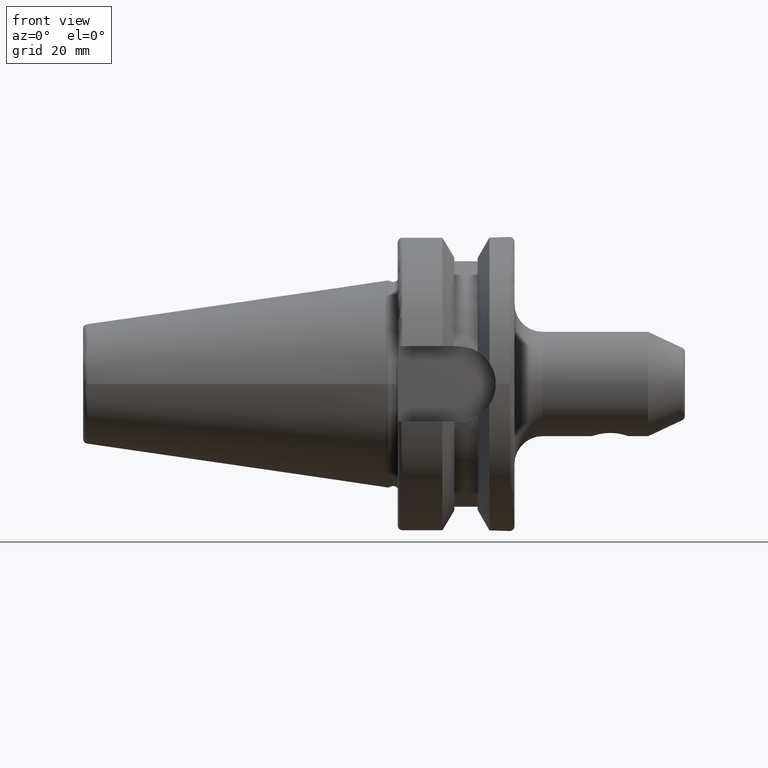
[diagram: clean part render]
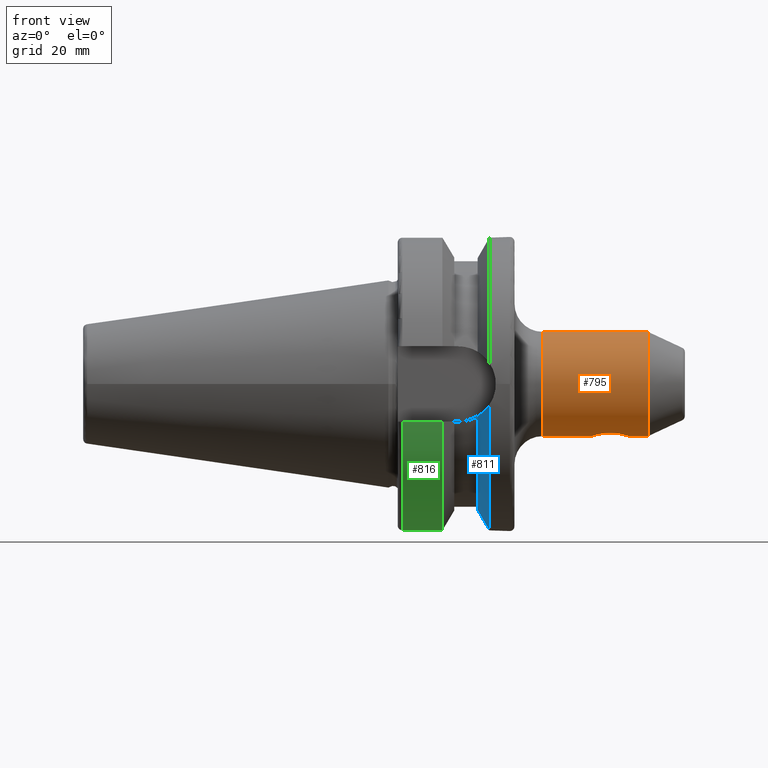
[diagram: same view with three faces highlighted in distinct colors, each labeled with its STEP entity id]
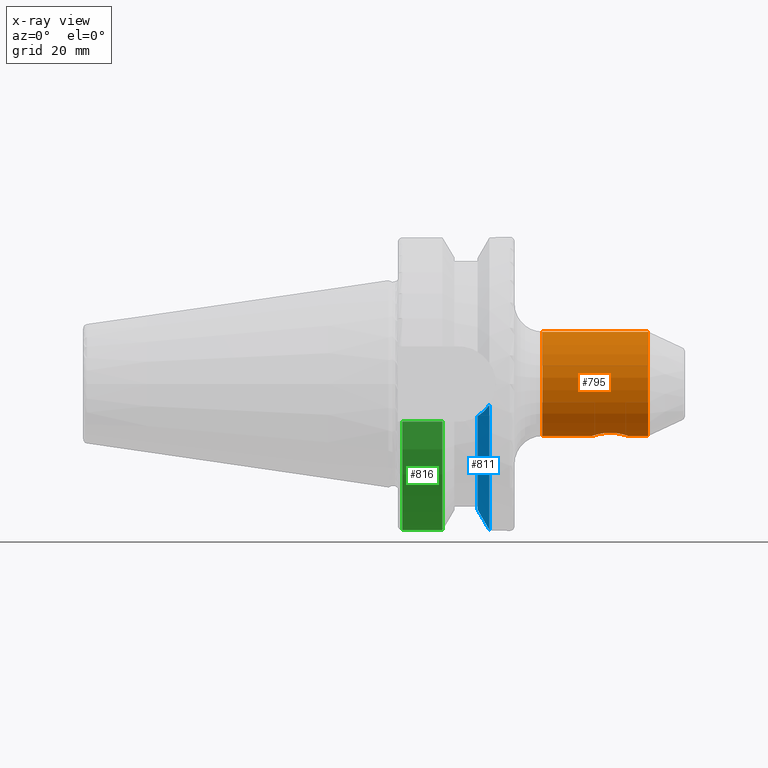
[diagram: x-ray of the same camera — body ghosted, the three highlighted faces saturated]
A machine part, front view with three faces highlighted in distinct colors.
The next image is the same camera in x-ray (body ghosted, the three faces saturated) — at least one of them is partly hidden behind the body in this view.
Their STEP definitions:

[orange] entity #795 — the highlighted cylindrical surface (bore or boss wall) has radius 11.176 mm, axis along (1, 0, 0).
#52=FACE_BOUND('',#180,.T.);
#59=CIRCLE('',#867,11.176);
#60=CIRCLE('',#868,11.176);
#61=CIRCLE('',#869,11.176);
#114=CYLINDRICAL_SURFACE('',#866,11.176);
#130=FACE_OUTER_BOUND('',#179,.T.);
#179=EDGE_LOOP('',(#555,#556,#557,#558,#559));
#180=EDGE_LOOP('',(#560));
#234=B_SPLINE_CURVE_WITH_KNOTS('',3,(#1338,#1339,#1340,#1341,#1342,#1343,
#1344,#1345,#1346,#1347,#1348,#1349,#1350,#1351,#1352,#1353,#1354,#1355,
#1356,#1357,#1358,#1359,#1360),.UNSPECIFIED.,.T.,.F.,(4,1,1,1,1,1,1,1,1,
1,1,1,1,1,1,1,1,1,1,1,4),(-3.60109538638099,-3.45411190122258,-3.30712841606418,
-3.28875548041937,-3.23363667348497,-3.16014493090577,-3.01316144574736,
-2.93966970316816,-2.86617796058895,-2.71919447543054,-2.62120548532494,
-2.52321649521933,-2.42522750511373,-2.32723851500812,-2.22924952490252,
-2.13126053479691,-1.9842770496385,-1.9107853070593,-1.8372935644801,-1.69031007932169,
-1.54332659416328),.UNSPECIFIED.);
#254=LINE('',#1413,#300);
#300=VECTOR('',#977,11.176);
#344=VERTEX_POINT('',#1312);
#348=VERTEX_POINT('',#1410);
#349=VERTEX_POINT('',#1412);
#350=VERTEX_POINT('',#1414);
#425=EDGE_CURVE('',#344,#344,#234,.T.);
#429=EDGE_CURVE('',#348,#348,#59,.T.);
#430=EDGE_CURVE('',#348,#349,#254,.T.);
#431=EDGE_CURVE('',#350,#349,#60,.T.);
#432=EDGE_CURVE('',#349,#350,#61,.T.);
#555=ORIENTED_EDGE('',*,*,#429,.F.);
#556=ORIENTED_EDGE('',*,*,#430,.T.);
#557=ORIENTED_EDGE('',*,*,#431,.F.);
#558=ORIENTED_EDGE('',*,*,#432,.F.);
#559=ORIENTED_EDGE('',*,*,#430,.F.);
#560=ORIENTED_EDGE('',*,*,#425,.F.);
#795=ADVANCED_FACE('',(#130,#52),#114,.T.);
#866=AXIS2_PLACEMENT_3D('',#1409,#973,#974);
#867=AXIS2_PLACEMENT_3D('',#1411,#975,#976);
#868=AXIS2_PLACEMENT_3D('',#1415,#978,#979);
#869=AXIS2_PLACEMENT_3D('',#1416,#980,#981);
#973=DIRECTION('center_axis',(1.,0.,0.));
#974=DIRECTION('ref_axis',(0.,0.,-1.));
#975=DIRECTION('center_axis',(1.,0.,0.));
#976=DIRECTION('ref_axis',(0.,0.,-1.));
#977=DIRECTION('',(-1.,0.,0.));
#978=DIRECTION('center_axis',(-1.,0.,0.));
#979=DIRECTION('ref_axis',(0.,-1.22464679914735E-16,1.));
#980=DIRECTION('center_axis',(-1.,0.,0.));
#981=DIRECTION('ref_axis',(0.,-1.22464679914735E-16,1.));
#1312=CARTESIAN_POINT('',(43.6091,2.77555756156289E-16,-11.176));
#1338=CARTESIAN_POINT('Ctrl Pts',(43.6091,2.77555756156289E-16,-11.176));
#1339=CARTESIAN_POINT('Ctrl Pts',(43.6091,0.562189037721418,-11.176));
#1340=CARTESIAN_POINT('Ctrl Pts',(43.8871855723304,1.77508042806121,-11.0753825305076));
#1341=CARTESIAN_POINT('Ctrl Pts',(44.6629362533301,2.72109062946936,-10.845867230977));
#1342=CARTESIAN_POINT('Ctrl Pts',(45.3460655227406,3.23324356468941,-10.699098830715));
#1343=CARTESIAN_POINT('Ctrl Pts',(45.8527279526033,3.53445460450522,-10.6044259262547));
#1344=CARTESIAN_POINT('Ctrl Pts',(46.9213401680526,3.89707731607406,-10.475621610086));
#1345=CARTESIAN_POINT('Ctrl Pts',(48.0793490754065,3.89790552168406,-10.4751370251406));
#1346=CARTESIAN_POINT('Ctrl Pts',(49.2266141873165,3.50609877583531,-10.6148767617679));
#1347=CARTESIAN_POINT('Ctrl Pts',(50.2034786055347,2.88461638119912,-10.8065387265879));
#1348=CARTESIAN_POINT('Ctrl Pts',(50.9882034004463,1.92898845031948,-11.0381136828858));
#1349=CARTESIAN_POINT('Ctrl Pts',(51.4076570476437,0.565252381470255,-11.1816676229239));
#1350=CARTESIAN_POINT('Ctrl Pts',(51.4031935706653,-0.564490802277567,-11.1806587792105));
#1351=CARTESIAN_POINT('Ctrl Pts',(51.0525667338401,-1.73133777329071,-11.0592472203944));
#1352=CARTESIAN_POINT('Ctrl Pts',(50.3857838320741,-2.67753023325383,-10.8608282496374));
#1353=CARTESIAN_POINT('Ctrl Pts',(49.5086245959755,-3.38337888092927,-10.6572953348695));
#1354=CARTESIAN_POINT('Ctrl Pts',(48.1746141047269,-3.90295810847859,-10.4737571846971));
#1355=CARTESIAN_POINT('Ctrl Pts',(46.9227202837038,-3.89735442983859,-10.4751856500013));
#1356=CARTESIAN_POINT('Ctrl Pts',(45.7781761910139,-3.50813508628092,-10.6138213185585));
#1357=CARTESIAN_POINT('Ctrl Pts',(44.7965982882075,-2.88491744122391,-10.8064930758489));
#1358=CARTESIAN_POINT('Ctrl Pts',(43.8906160225009,-1.77816752704874,-11.074169609333));
#1359=CARTESIAN_POINT('Ctrl Pts',(43.6091,-0.562189037721385,-11.176));
#1360=CARTESIAN_POINT('Ctrl Pts',(43.6091,3.05311331771918E-15,-11.176));
#1409=CARTESIAN_POINT('Origin',(41.3083962801034,0.,0.));
#1410=CARTESIAN_POINT('',(55.6167925602068,-1.36866526272708E-15,11.176));
#1411=CARTESIAN_POINT('Origin',(55.6167925602068,0.,0.));
#1412=CARTESIAN_POINT('',(33.,-1.36866526272708E-15,11.176));
#1413=CARTESIAN_POINT('',(41.3083962801034,-1.36866526272708E-15,11.176));
#1414=CARTESIAN_POINT('',(33.,0.,-11.176));
#1415=CARTESIAN_POINT('Origin',(33.,0.,0.));
#1416=CARTESIAN_POINT('Origin',(33.,0.,0.));

[blue] entity #811 — the highlighted conical surface has half-angle 60.125 deg.
#37=CONICAL_SURFACE('',#903,29.2970358274569,1.0493792127616);
#77=CIRCLE('',#900,31.5);
#80=CIRCLE('',#904,27.0940716549138);
#146=FACE_OUTER_BOUND('',#199,.T.);
#199=EDGE_LOOP('',(#642,#643,#644,#645));
#238=B_SPLINE_CURVE_WITH_KNOTS('',3,(#1469,#1470,#1471,#1472,#1473,#1474),
 .UNSPECIFIED.,.F.,.F.,(4,2,4),(3.12975744792551,3.6269928875698,3.7084873746139),
 .UNSPECIFIED.);
#246=B_SPLINE_CURVE_WITH_KNOTS('',3,(#1585,#1586,#1587,#1588,#1589,#1590),
 .UNSPECIFIED.,.F.,.F.,(4,2,4),(1.46421027899563,1.54570476603974,2.04294020568402),
 .UNSPECIFIED.);
#364=VERTEX_POINT('',#1466);
#365=VERTEX_POINT('',#1468);
#387=VERTEX_POINT('',#1567);
#389=VERTEX_POINT('',#1583);
#454=EDGE_CURVE('',#365,#364,#238,.T.);
#480=EDGE_CURVE('',#365,#387,#77,.T.);
#484=EDGE_CURVE('',#364,#389,#80,.T.);
#485=EDGE_CURVE('',#389,#387,#246,.T.);
#642=ORIENTED_EDGE('',*,*,#454,.T.);
#643=ORIENTED_EDGE('',*,*,#484,.T.);
#644=ORIENTED_EDGE('',*,*,#485,.T.);
#645=ORIENTED_EDGE('',*,*,#480,.F.);
#811=ADVANCED_FACE('',(#146),#37,.T.);
#900=AXIS2_PLACEMENT_3D('',#1568,#1064,#1065);
#903=AXIS2_PLACEMENT_3D('',#1582,#1070,#1071);
#904=AXIS2_PLACEMENT_3D('',#1584,#1072,#1073);
#1064=DIRECTION('center_axis',(1.,0.,0.));
#1065=DIRECTION('ref_axis',(0.,0.,-1.));
#1070=DIRECTION('center_axis',(1.,0.,0.));
#1071=DIRECTION('ref_axis',(0.,1.,0.));
#1072=DIRECTION('center_axis',(1.,0.,0.));
#1073=DIRECTION('ref_axis',(0.,0.,-1.));
#1466=CARTESIAN_POINT('',(19.1,-26.201311395455,-6.89782574439221));
#1468=CARTESIAN_POINT('',(21.6309636926618,-31.1782420264945,-4.49079326370462));
#1469=CARTESIAN_POINT('Ctrl Pts',(21.6309636926618,-31.1782420264945,-4.49079326370461));
#1470=CARTESIAN_POINT('Ctrl Pts',(20.9728756148302,-29.8797957262939,-5.46983244373119));
#1471=CARTESIAN_POINT('Ctrl Pts',(20.1784155384866,-28.3157123387483,-6.1823136897693));
#1472=CARTESIAN_POINT('Ctrl Pts',(19.3406963650696,-26.6728819297427,-6.74867108656043));
#1473=CARTESIAN_POINT('Ctrl Pts',(19.2210929544554,-26.438473693351,-6.82497151762397));
#1474=CARTESIAN_POINT('Ctrl Pts',(19.1,-26.201311395455,-6.89782574439222));
#1567=CARTESIAN_POINT('',(21.6309636926618,31.1782420264945,-4.49079326370462));
#1568=CARTESIAN_POINT('Origin',(21.6309636926618,0.,0.));
#1582=CARTESIAN_POINT('Origin',(20.3654818463309,0.,0.));
#1583=CARTESIAN_POINT('',(19.1,26.201311395455,-6.89782574439221));
#1584=CARTESIAN_POINT('Origin',(19.1,0.,0.));
#1585=CARTESIAN_POINT('Ctrl Pts',(19.1,26.201311395455,-6.89782574439221));
#1586=CARTESIAN_POINT('Ctrl Pts',(19.2210929544554,26.438473693351,-6.82497151762396));
#1587=CARTESIAN_POINT('Ctrl Pts',(19.3406963650696,26.6728819297427,-6.74867108656043));
#1588=CARTESIAN_POINT('Ctrl Pts',(20.1784155384866,28.3157123387483,-6.1823136897693));
#1589=CARTESIAN_POINT('Ctrl Pts',(20.9728756148302,29.8797957262938,-5.46983244373119));
#1590=CARTESIAN_POINT('Ctrl Pts',(21.6309636926618,31.1782420264945,-4.49079326370462));

[green] entity #816 — the highlighted cylindrical surface (partial cylindrical patch) has radius 31.5 mm, axis along (1, 0, 0).
#84=CIRCLE('',#912,31.5000000000001);
#85=CIRCLE('',#914,31.5);
#121=CYLINDRICAL_SURFACE('',#913,31.5);
#151=FACE_OUTER_BOUND('',#204,.T.);
#204=EDGE_LOOP('',(#664,#665,#666,#667));
#273=LINE('',#1554,#319);
#280=LINE('',#1619,#326);
#319=VECTOR('',#1054,10.);
#326=VECTOR('',#1097,10.);
#382=VERTEX_POINT('',#1542);
#383=VERTEX_POINT('',#1553);
#394=VERTEX_POINT('',#1611);
#395=VERTEX_POINT('',#1617);
#474=EDGE_CURVE('',#383,#382,#273,.T.);
#493=EDGE_CURVE('',#383,#394,#84,.T.);
#495=EDGE_CURVE('',#382,#395,#85,.T.);
#496=EDGE_CURVE('',#395,#394,#280,.T.);
#664=ORIENTED_EDGE('',*,*,#474,.T.);
#665=ORIENTED_EDGE('',*,*,#495,.T.);
#666=ORIENTED_EDGE('',*,*,#496,.T.);
#667=ORIENTED_EDGE('',*,*,#493,.F.);
#816=ADVANCED_FACE('',(#151),#121,.T.);
#912=AXIS2_PLACEMENT_3D('',#1612,#1091,#1092);
#913=AXIS2_PLACEMENT_3D('',#1616,#1093,#1094);
#914=AXIS2_PLACEMENT_3D('',#1618,#1095,#1096);
#1054=DIRECTION('',(-1.,0.,0.));
#1091=DIRECTION('center_axis',(1.,0.,0.));
#1092=DIRECTION('ref_axis',(0.,0.,-1.));
#1093=DIRECTION('center_axis',(1.,0.,0.));
#1094=DIRECTION('ref_axis',(0.,1.,0.));
#1095=DIRECTION('center_axis',(1.,0.,0.));
#1096=DIRECTION('ref_axis',(0.,0.,-1.));
#1097=DIRECTION('',(1.,0.,0.));
#1542=CARTESIAN_POINT('',(2.99999999999999,-30.4540227227866,-8.05));
#1553=CARTESIAN_POINT('',(11.5690363073382,-30.4540227227866,-8.05));
#1554=CARTESIAN_POINT('',(7.28451815366907,-30.4540227227866,-8.05));
#1611=CARTESIAN_POINT('',(11.5690363073382,30.4540227227866,-8.05));
#1612=CARTESIAN_POINT('Origin',(11.5690363073382,0.,0.));
#1616=CARTESIAN_POINT('Origin',(7.28451815366907,0.,0.));
#1617=CARTESIAN_POINT('',(2.99999999999999,30.4540227227866,-8.05));
#1618=CARTESIAN_POINT('Origin',(2.99999999999999,0.,0.));
#1619=CARTESIAN_POINT('',(7.28451815366907,30.4540227227866,-8.05));